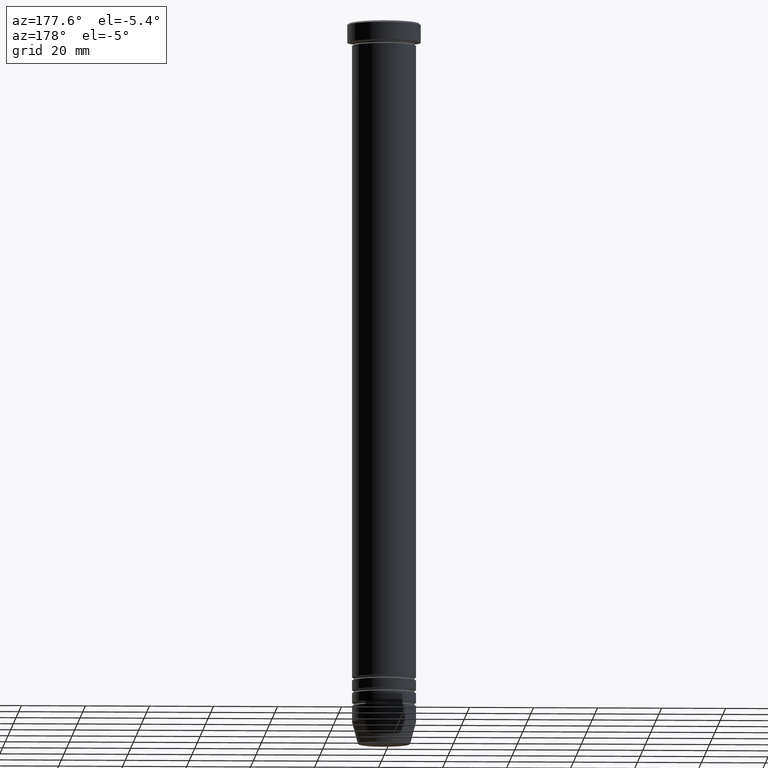
[diagram: clean part render]
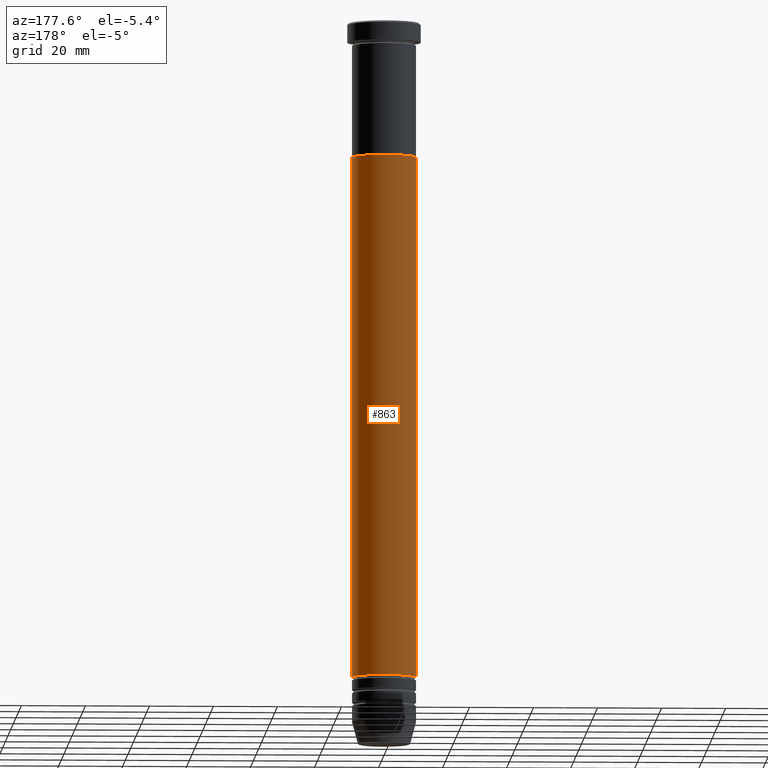
[diagram: same view with one face highlighted and labeled with its STEP entity id]
A machine part, auxiliary view. The second image highlights one B-rep face of the part: STEP entity #863.
In plain terms, the highlighted cylindrical surface (edge-blend (fillet) strip) has radius 10 mm, axis along (-0, -0, 1).
Its self-contained STEP definition (entity closure, byte-faithful):
#31 = CARTESIAN_POINT ( 'NONE',  ( 9.999999999999992895, 0.000000000000000000, -205.0000000000000000 ) ) ;
#50 = DIRECTION ( 'NONE',  ( 1.000000000000000000, 0.000000000000000000, 0.000000000000000000 ) ) ;
#118 = EDGE_CURVE ( 'NONE', #214, #627, #893, .T. ) ;
#119 = CARTESIAN_POINT ( 'NONE',  ( -10.00000000000000178, 1.224646799147353454E-15, -41.99999999999999289 ) ) ;
#133 = AXIS2_PLACEMENT_3D ( 'NONE', #1092, #740, #369 ) ;
#143 = CYLINDRICAL_SURFACE ( 'NONE', #1136, 9.999999999999996447 ) ;
#149 = DIRECTION ( 'NONE',  ( -0.000000000000000000, -0.000000000000000000, 1.000000000000000000 ) ) ;
#161 = DIRECTION ( 'NONE',  ( -0.000000000000000000, -0.000000000000000000, 1.000000000000000000 ) ) ;
#192 = CARTESIAN_POINT ( 'NONE',  ( 9.999999999999996447, 0.000000000000000000, 0.000000000000000000 ) ) ;
#214 = VERTEX_POINT ( 'NONE', #271 ) ;
#222 = ORIENTED_EDGE ( 'NONE', *, *, #502, .T. ) ;
#226 = FACE_OUTER_BOUND ( 'NONE', #644, .T. ) ;
#270 = EDGE_CURVE ( 'NONE', #666, #214, #629, .T. ) ;
#271 = CARTESIAN_POINT ( 'NONE',  ( 10.00000000000000000, 0.000000000000000000, -41.99999999999999289 ) ) ;
#282 = CIRCLE ( 'NONE', #133, 9.999999999999992895 ) ;
#309 = VERTEX_POINT ( 'NONE', #897 ) ;
#317 = AXIS2_PLACEMENT_3D ( 'NONE', #779, #161, #974 ) ;
#369 = DIRECTION ( 'NONE',  ( 1.000000000000000000, 0.000000000000000000, 0.000000000000000000 ) ) ;
#391 = ORIENTED_EDGE ( 'NONE', *, *, #270, .F. ) ;
#502 = EDGE_CURVE ( 'NONE', #309, #627, #682, .T. ) ;
#522 = CARTESIAN_POINT ( 'NONE',  ( -9.999999999999996447, 1.224646799147352862E-15, 0.000000000000000000 ) ) ;
#627 = VERTEX_POINT ( 'NONE', #119 ) ;
#629 = LINE ( 'NONE', #192, #837 ) ;
#644 = EDGE_LOOP ( 'NONE', ( #1051, #222, #790, #391 ) ) ;
#666 = VERTEX_POINT ( 'NONE', #31 ) ;
#682 = LINE ( 'NONE', #522, #1042 ) ;
#740 = DIRECTION ( 'NONE',  ( -0.000000000000000000, -0.000000000000000000, 1.000000000000000000 ) ) ;
#779 = CARTESIAN_POINT ( 'NONE',  ( 0.000000000000000000, 0.000000000000000000, -41.99999999999999289 ) ) ;
#790 = ORIENTED_EDGE ( 'NONE', *, *, #118, .F. ) ;
#837 = VECTOR ( 'NONE', #918, 1000.000000000000000 ) ;
#851 = DIRECTION ( 'NONE',  ( -0.000000000000000000, -0.000000000000000000, 1.000000000000000000 ) ) ;
#863 = ADVANCED_FACE ( 'NONE', ( #226 ), #143, .T. ) ;
#893 = CIRCLE ( 'NONE', #317, 10.00000000000000000 ) ;
#897 = CARTESIAN_POINT ( 'NONE',  ( -9.999999999999992895, 1.224646799147352665E-15, -205.0000000000000000 ) ) ;
#918 = DIRECTION ( 'NONE',  ( -0.000000000000000000, -0.000000000000000000, 1.000000000000000000 ) ) ;
#938 = CARTESIAN_POINT ( 'NONE',  ( 0.000000000000000000, 0.000000000000000000, 0.000000000000000000 ) ) ;
#974 = DIRECTION ( 'NONE',  ( 1.000000000000000000, 0.000000000000000000, 0.000000000000000000 ) ) ;
#1042 = VECTOR ( 'NONE', #149, 1000.000000000000000 ) ;
#1051 = ORIENTED_EDGE ( 'NONE', *, *, #1100, .T. ) ;
#1092 = CARTESIAN_POINT ( 'NONE',  ( 0.000000000000000000, 0.000000000000000000, -205.0000000000000000 ) ) ;
#1100 = EDGE_CURVE ( 'NONE', #666, #309, #282, .T. ) ;
#1136 = AXIS2_PLACEMENT_3D ( 'NONE', #938, #851, #50 ) ;